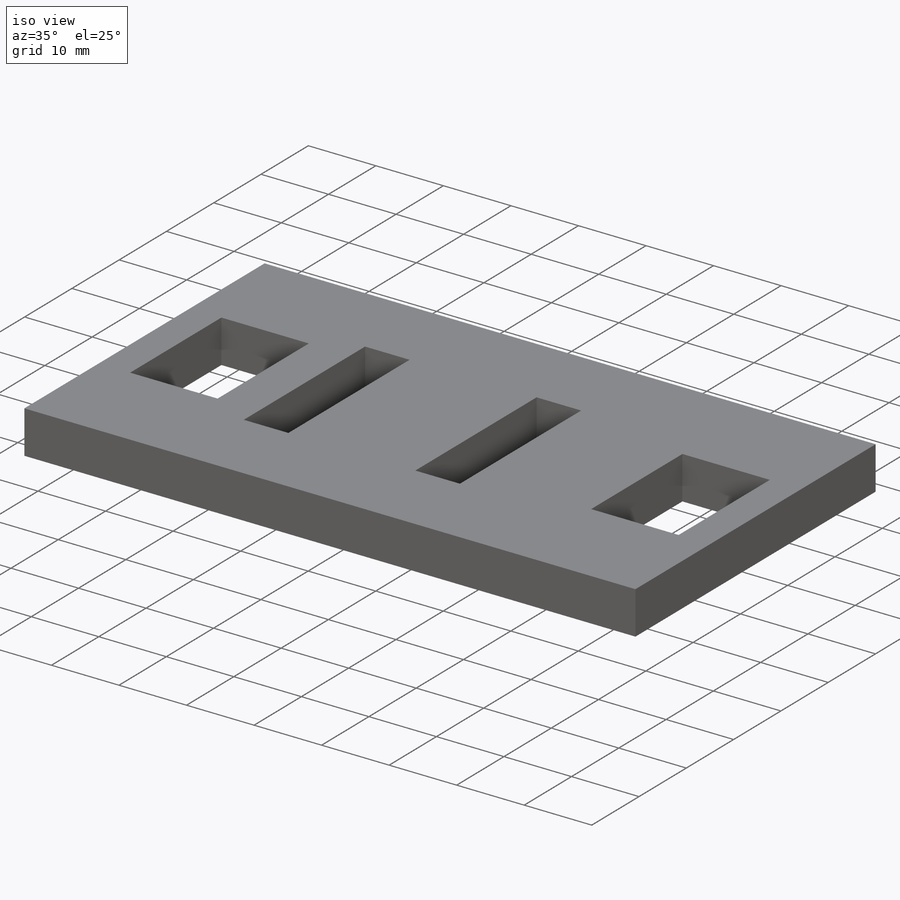
[diagram: iso view]
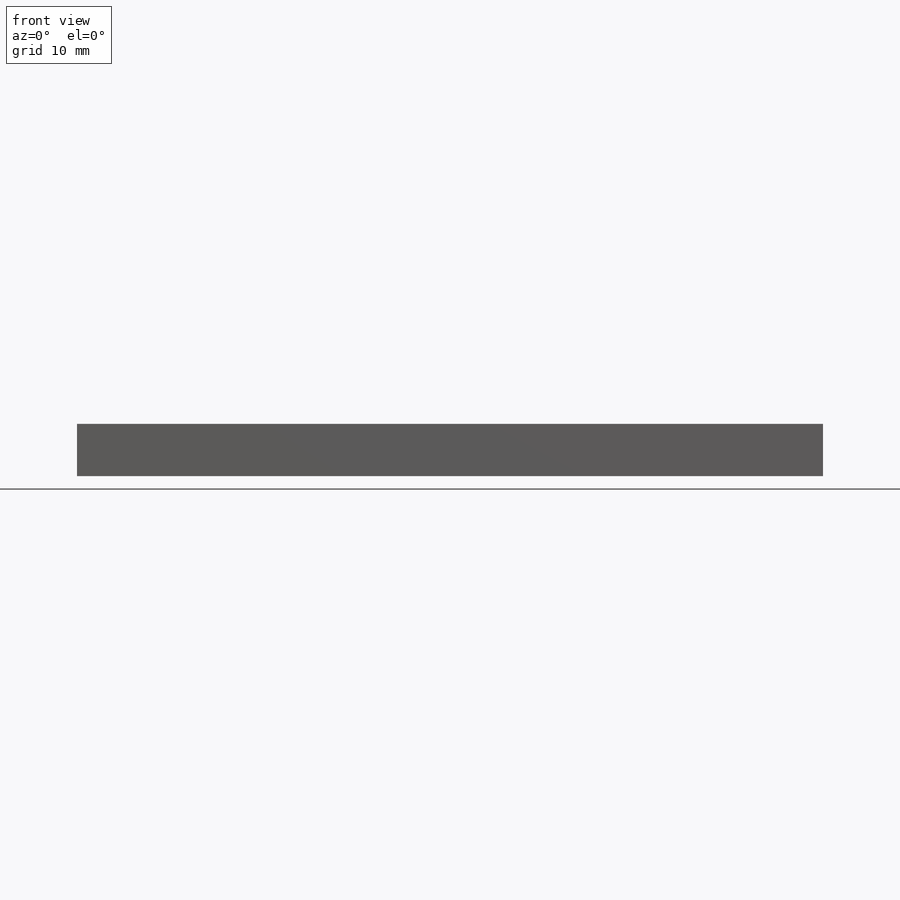
[diagram: front view]
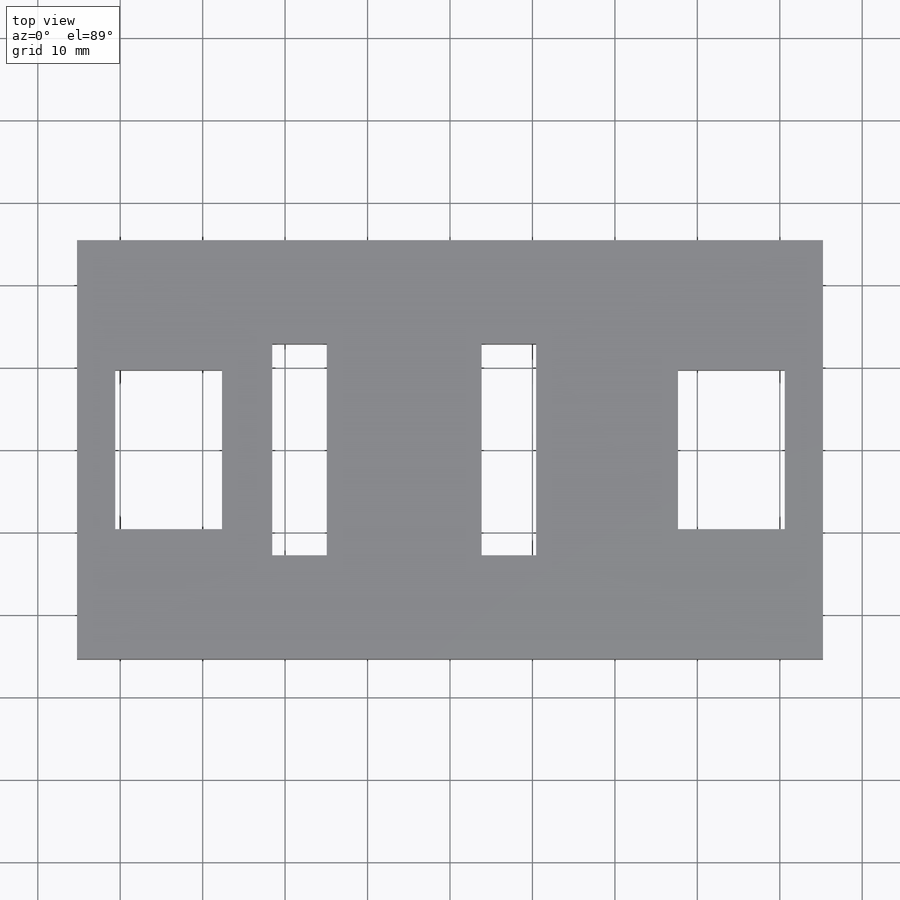
[diagram: top view]
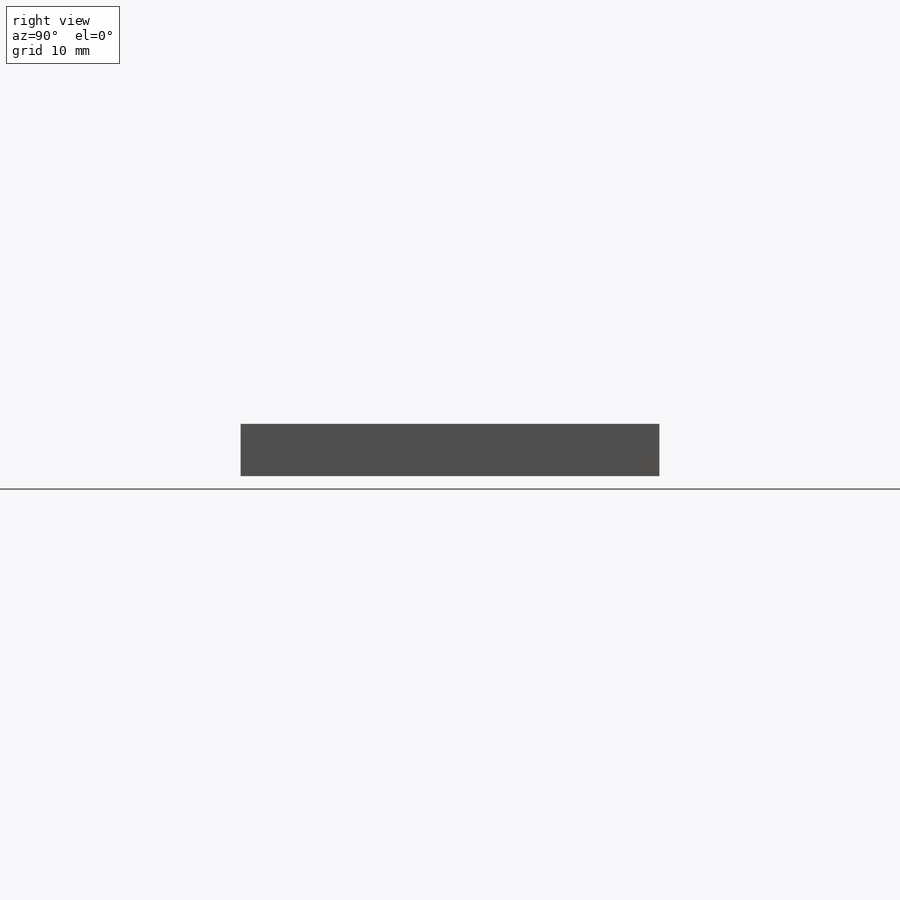
[diagram: right view]
SOLIDWORKS PART (.sldprt)
format: sldprt  version: not decoded by parser v0  size: 199,168 bytes
history: native  units: mm
features: sketch x4, extrude x2, cut_extrude x2, material x1 (+13 scaffold rows collapsed)
feature tree (22):
  scaffold x13  (default folders/planes/origin — collapsed)
  material  "Plain Carbon Steel"
  sketch  "Sketch1"  dims[D1=~40.48125mm D2=25.4mm]
  extrude  "Boss-Extrude1"  Depth=6.35mm
  sketch  "Sketch3"  dims[c1.D1=23.8125mm c1.D2=6.35mm c2.D1=23.8125mm c2.D2=6.35mm c3.D1=25.4mm c3.D2=6.35mm c4.D1=25.4mm c4.D2=6.35mm c5.D1=0.127mm]
  cut_extrude  "Cut-Extrude1"  [1 undecoded]
  sketch  "Sketch4"  dims[c1.D1=50.8mm c1.D2=4.7625mm c2.D1=50.8mm c2.D2=4.7625mm]
  extrude  "Boss-Extrude2"  [1 undecoded]
  sketch  "Sketch5"  dims[c1.D1=19.05mm c1.D2=12.7mm c2.D1=19.05mm c2.D2=12.7mm c3.D1=0.127mm]
  cut_extrude  "Cut-Extrude2"  [1 undecoded]
decode coverage: 5 of 8 modeling features carry decoded parameters
note: ~ marks probable driven/reference dimensions
note: 3 parameter values undecoded
summary: no parameter record found for 3 features
note: suppression state not decoded; provenance and decode notes live in map.json
